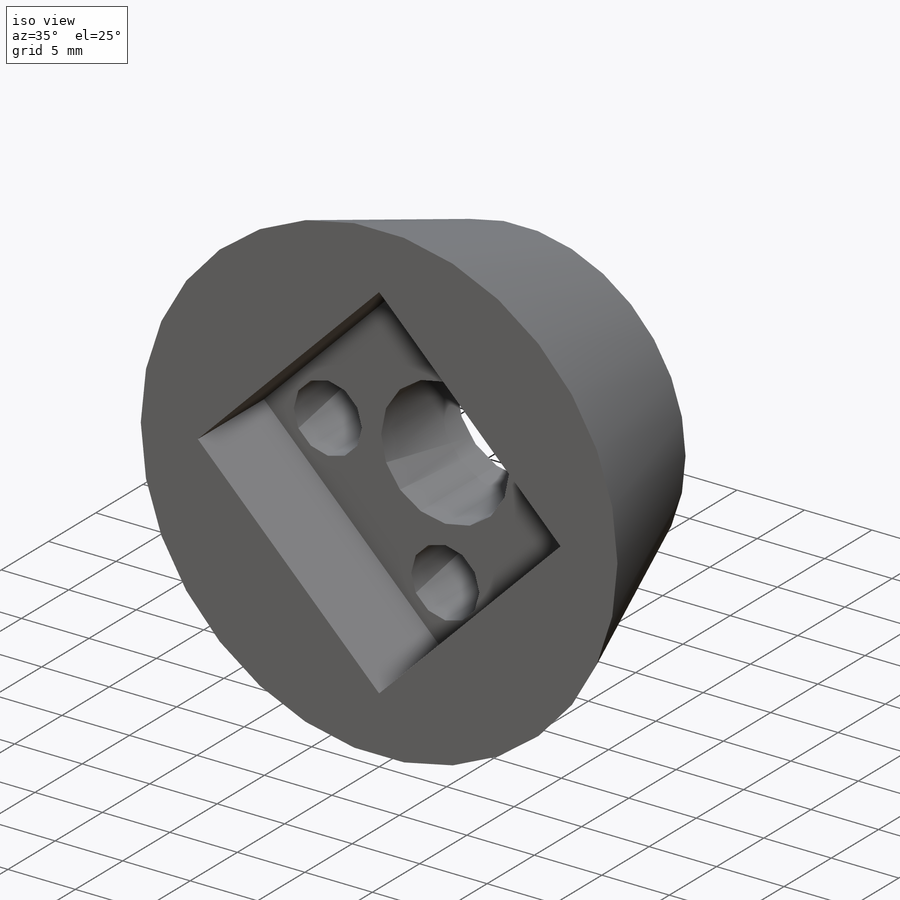
[diagram: iso view]
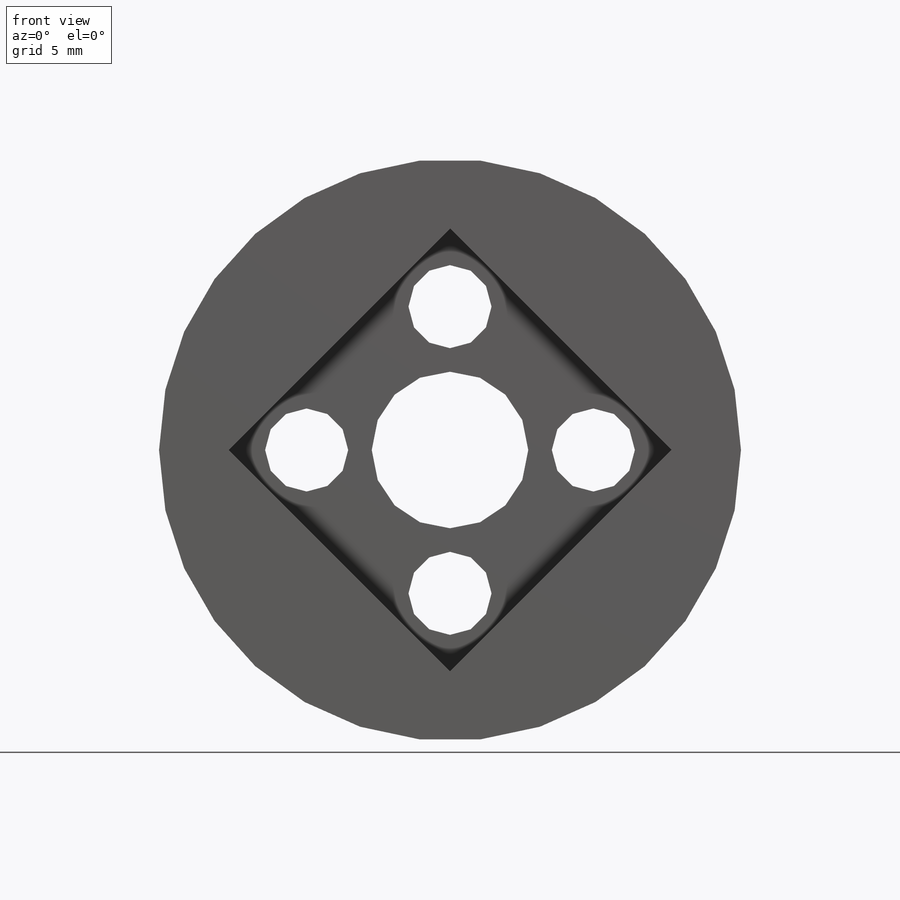
[diagram: front view]
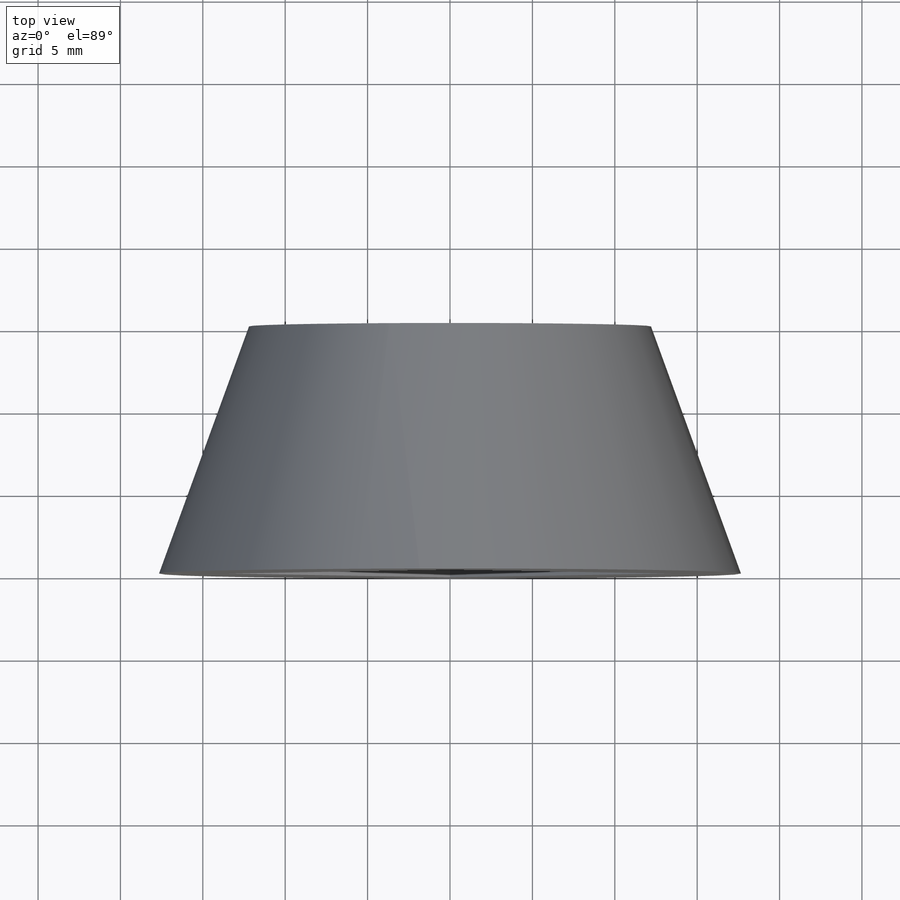
[diagram: top view]
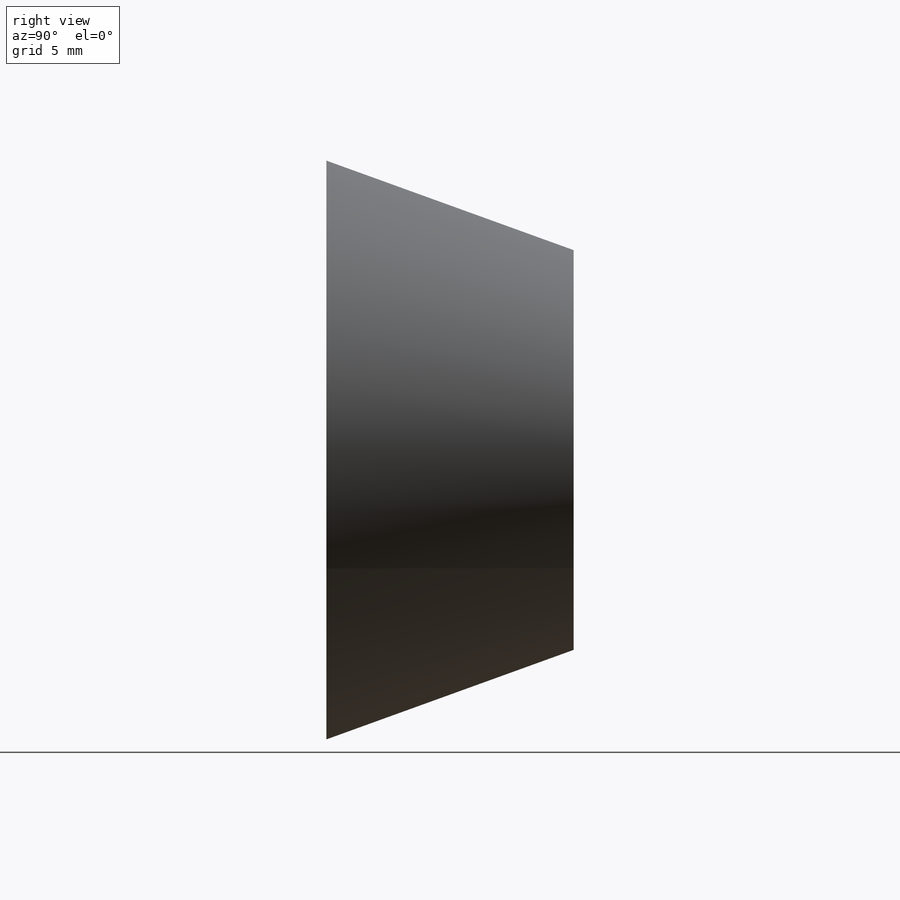
[diagram: right view]
SOLIDWORKS PART (.sldprt)
format: sldprt  version: not decoded by parser v0  size: 238,592 bytes
history: native  units: mm
features: sketch x4, cut_extrude x3, material x1, extrude x1 (+13 scaffold rows collapsed)
feature tree (22):
  scaffold x13  (default folders/planes/origin — collapsed)
  material  "Material <not specified>"
  sketch  "GearFaceProfile"  dims[D1=24.4mm]
  extrude  "GearFaceExtrude"  Depth=15mm
  sketch  "CenterHoleProfile"  dims[D1=9.5mm]
  cut_extrude  "CenterHoleCut"  [1 undecoded]
  sketch  "ScrewHoleProfile"  dims[c1.D5=5.04mm c1.D6=5.04mm c1.D7=5.04mm c1.D8=5.04mm c1.D1=8.7mm c1.D2=~8.359652mm c2.D2=8.7mm c2.D3=~8.63268mm c3.D3=8.7mm c3.D4=8.7mm]
  cut_extrude  "ScrewHoleCut"  [1 undecoded]
  sketch  "ShaftCollarAttachmentProfile"  dims[c1.D1=19.0mm c1.D2=~13.408652mm c1.D3=~13.461354mm c2.D2=19.0mm c2.D3=~0.733973mm]
  cut_extrude  "ShaftCollarDockingCut"  Depth=7mm
decode coverage: 6 of 8 modeling features carry decoded parameters
note: ~ marks probable driven/reference dimensions
note: 2 parameter values undecoded
note: suppression state not decoded; provenance and decode notes live in map.json
